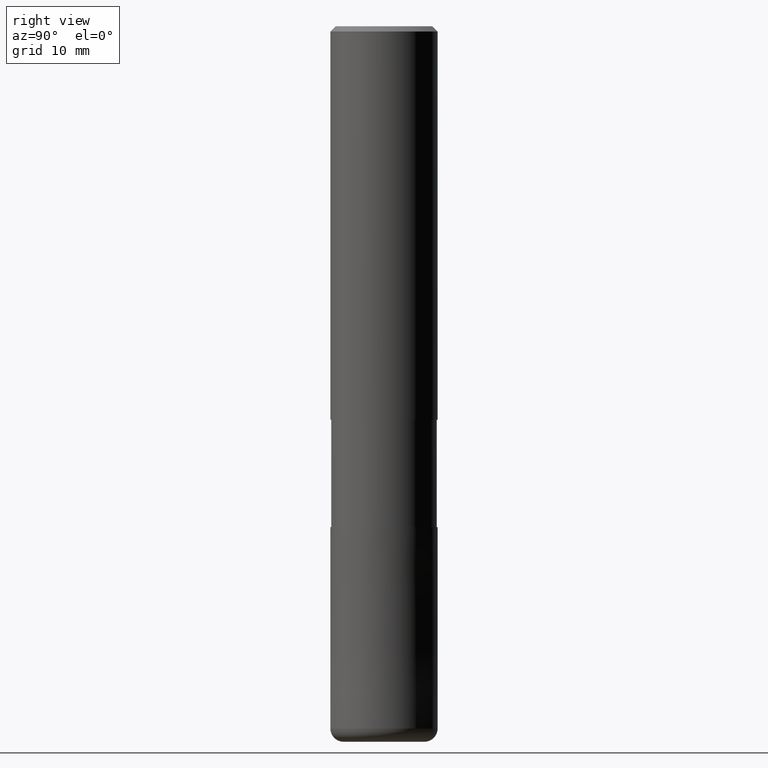
[diagram: clean part render]
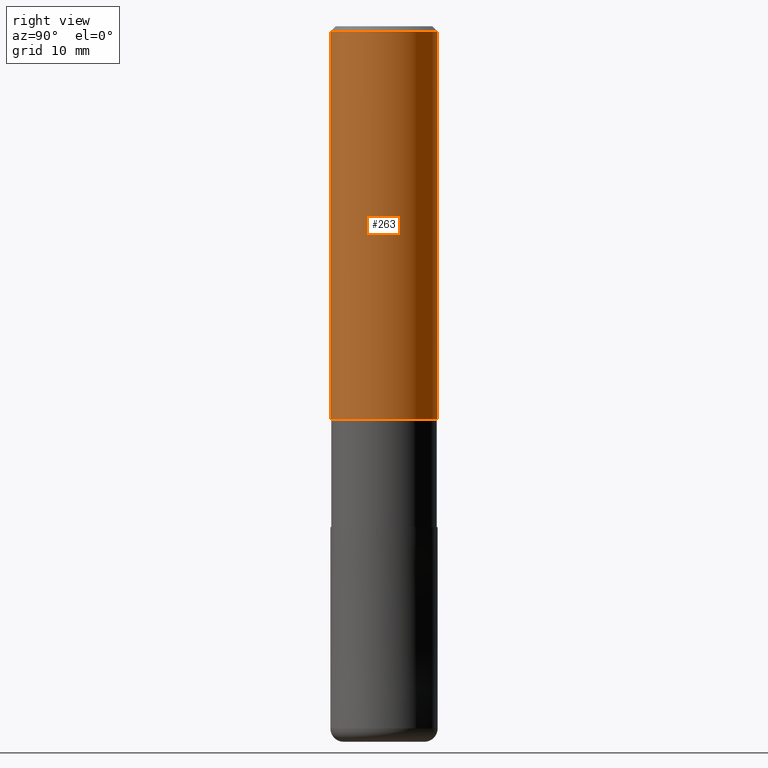
[diagram: same view with one face highlighted and labeled with its STEP entity id]
A machine part, right view. The second image highlights one B-rep face of the part: STEP entity #263.
In plain terms, the highlighted cylindrical surface (partial cylindrical patch) has radius 6 mm, axis along (-0, -0, 1).
Its self-contained STEP definition (entity closure, byte-faithful):
#141=EDGE_CURVE('',#231,#239,#331,.T.);
#193=EDGE_CURVE('',#241,#271,#393,.T.);
#231=VERTEX_POINT('',#437);
#235=EDGE_CURVE('',#271,#239,#441,.T.);
#239=VERTEX_POINT('',#445);
#241=VERTEX_POINT('',#447);
#261=EDGE_CURVE('',#231,#241,#467,.T.);
#263=ADVANCED_FACE('',(#469),#470,.T.);
#271=VERTEX_POINT('',#479);
#331=CIRCLE('',#539,6.0);
#393=CIRCLE('',#615,6.0);
#437=CARTESIAN_POINT('',(0.0,6.0,-0.600000000000001));
#441=LINE('',#677,#678);
#445=CARTESIAN_POINT('',(7.34763812293426E-016,-6.0,-0.600000000000001));
#447=CARTESIAN_POINT('',(0.0,6.0,-44.0));
#467=LINE('',#711,#712);
#469=FACE_OUTER_BOUND('',#714,.T.);
#470=CYLINDRICAL_SURFACE('',#715,6.0);
#479=CARTESIAN_POINT('',(7.34763812293426E-016,-6.0,-44.0));
#539=AXIS2_PLACEMENT_3D('',#785,#786,#787);
#615=AXIS2_PLACEMENT_3D('',#873,#874,#875);
#677=CARTESIAN_POINT('',(7.34763812293426E-016,-6.0,-22.3));
#678=VECTOR('',#941,1.0);
#711=CARTESIAN_POINT('',(-7.34763812293426E-016,6.0,-22.3));
#712=VECTOR('',#954,1.0);
#714=EDGE_LOOP('',(#956,#957,#958,#959));
#715=AXIS2_PLACEMENT_3D('',#960,#961,#962);
#785=CARTESIAN_POINT('',(0.0,0.0,-0.600000000000001));
#786=DIRECTION('',(0.0,0.0,-1.0));
#787=DIRECTION('',(0.0,1.0,0.0));
#873=CARTESIAN_POINT('',(0.0,0.0,-44.0));
#874=DIRECTION('',(0.0,0.0,-1.0));
#875=DIRECTION('',(0.0,1.0,0.0));
#941=DIRECTION('',(-0.0,-0.0,1.0));
#954=DIRECTION('',(0.0,0.0,-1.0));
#956=ORIENTED_EDGE('',*,*,#261,.F.);
#957=ORIENTED_EDGE('',*,*,#141,.T.);
#958=ORIENTED_EDGE('',*,*,#235,.F.);
#959=ORIENTED_EDGE('',*,*,#193,.F.);
#960=CARTESIAN_POINT('',(0.0,0.0,-22.3));
#961=DIRECTION('',(-0.0,-0.0,1.0));
#962=DIRECTION('',(0.0,1.0,0.0));